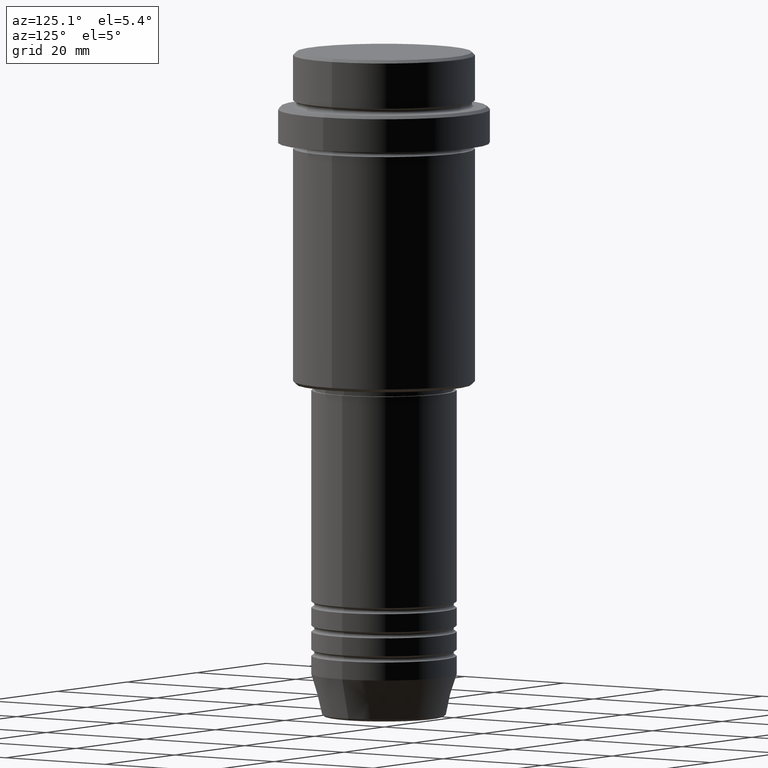
[diagram: clean part render]
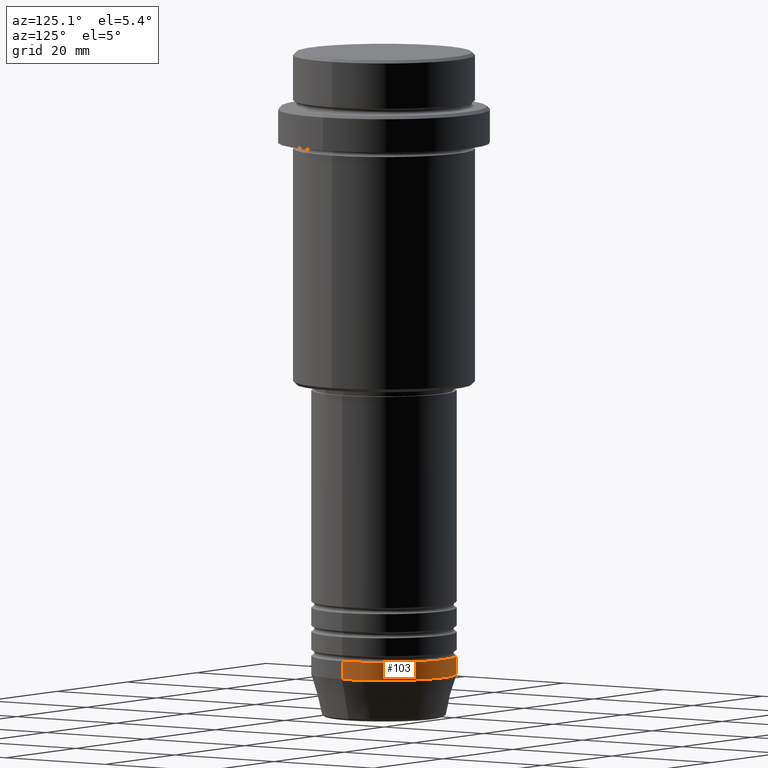
[diagram: same view with one face highlighted and labeled with its STEP entity id]
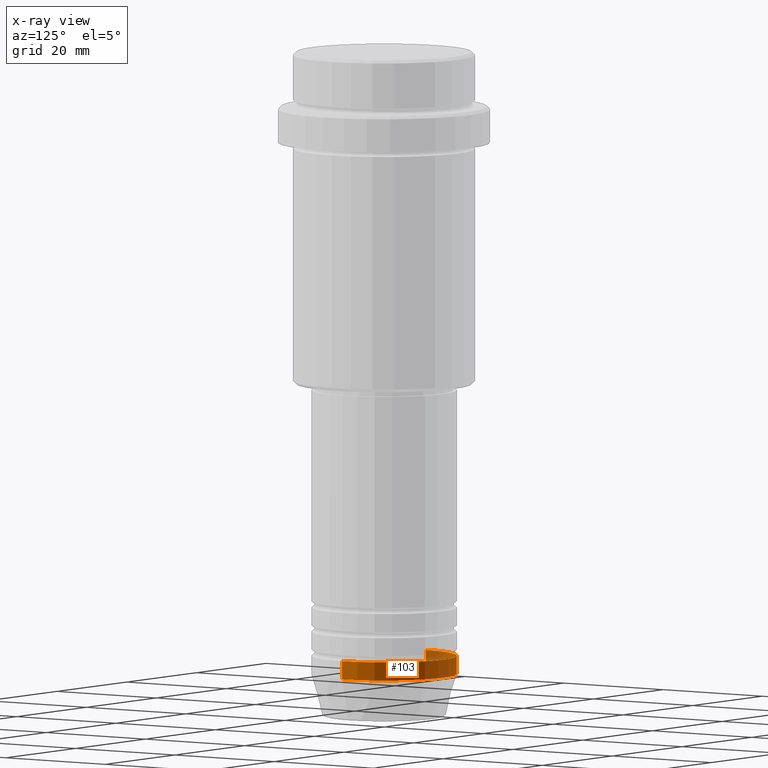
[diagram: x-ray of the same camera — body ghosted, the highlighted face saturated]
A machine part, auxiliary view. The second image highlights one B-rep face of the part: STEP entity #103.
The next image is the same camera in x-ray: the body ghosted, the highlighted face saturated — about 8% of this face is hidden behind the body in this view.
In plain terms, the highlighted cylindrical surface (partial cylindrical patch) has radius 12 mm, axis along (-0, -0, 1).
Its self-contained STEP definition (entity closure, byte-faithful):
#16 = AXIS2_PLACEMENT_3D ( 'NONE', #1383, #195, #646 ) ;
#50 = VERTEX_POINT ( 'NONE', #639 ) ;
#103 = ADVANCED_FACE ( 'NONE', ( #1068 ), #959, .T. ) ;
#166 = CIRCLE ( 'NONE', #217, 12.00000000000000000 ) ;
#195 = DIRECTION ( 'NONE',  ( -0.000000000000000000, -0.000000000000000000, 1.000000000000000000 ) ) ;
#217 = AXIS2_PLACEMENT_3D ( 'NONE', #401, #826, #848 ) ;
#219 = CIRCLE ( 'NONE', #565, 12.00000000000000000 ) ;
#327 = CARTESIAN_POINT ( 'NONE',  ( 12.00000000000000000, 0.000000000000000000, -103.0000000000000142 ) ) ;
#356 = EDGE_CURVE ( 'NONE', #1173, #883, #166, .T. ) ;
#380 = DIRECTION ( 'NONE',  ( -0.000000000000000000, -0.000000000000000000, 1.000000000000000000 ) ) ;
#388 = CARTESIAN_POINT ( 'NONE',  ( -12.00000000000000000, 1.469576158976823947E-15, -103.0000000000000142 ) ) ;
#401 = CARTESIAN_POINT ( 'NONE',  ( 0.000000000000000000, 0.000000000000000000, -103.0000000000000142 ) ) ;
#454 = ORIENTED_EDGE ( 'NONE', *, *, #914, .T. ) ;
#474 = VECTOR ( 'NONE', #924, 1000.000000000000000 ) ;
#541 = CARTESIAN_POINT ( 'NONE',  ( 0.000000000000000000, 0.000000000000000000, -100.0000000000000000 ) ) ;
#565 = AXIS2_PLACEMENT_3D ( 'NONE', #541, #861, #1162 ) ;
#566 = ORIENTED_EDGE ( 'NONE', *, *, #356, .T. ) ;
#639 = CARTESIAN_POINT ( 'NONE',  ( -12.00000000000000000, 1.469576158976823947E-15, -100.0000000000000000 ) ) ;
#644 = ORIENTED_EDGE ( 'NONE', *, *, #889, .F. ) ;
#646 = DIRECTION ( 'NONE',  ( 1.000000000000000000, 0.000000000000000000, 0.000000000000000000 ) ) ;
#651 = EDGE_CURVE ( 'NONE', #1094, #50, #219, .T. ) ;
#711 = CARTESIAN_POINT ( 'NONE',  ( 12.00000000000000000, 0.000000000000000000, 0.000000000000000000 ) ) ;
#777 = CARTESIAN_POINT ( 'NONE',  ( 12.00000000000000000, 0.000000000000000000, -100.0000000000000000 ) ) ;
#826 = DIRECTION ( 'NONE',  ( -0.000000000000000000, -0.000000000000000000, 1.000000000000000000 ) ) ;
#848 = DIRECTION ( 'NONE',  ( 1.000000000000000000, 0.000000000000000000, 0.000000000000000000 ) ) ;
#861 = DIRECTION ( 'NONE',  ( -0.000000000000000000, -0.000000000000000000, 1.000000000000000000 ) ) ;
#883 = VERTEX_POINT ( 'NONE', #388 ) ;
#889 = EDGE_CURVE ( 'NONE', #1173, #1094, #1262, .T. ) ;
#914 = EDGE_CURVE ( 'NONE', #883, #50, #916, .T. ) ;
#916 = LINE ( 'NONE', #1237, #474 ) ;
#924 = DIRECTION ( 'NONE',  ( -0.000000000000000000, -0.000000000000000000, 1.000000000000000000 ) ) ;
#959 = CYLINDRICAL_SURFACE ( 'NONE', #16, 12.00000000000000000 ) ;
#1068 = FACE_OUTER_BOUND ( 'NONE', #1159, .T. ) ;
#1094 = VERTEX_POINT ( 'NONE', #777 ) ;
#1152 = VECTOR ( 'NONE', #380, 1000.000000000000000 ) ;
#1159 = EDGE_LOOP ( 'NONE', ( #566, #454, #1272, #644 ) ) ;
#1162 = DIRECTION ( 'NONE',  ( 1.000000000000000000, 0.000000000000000000, 0.000000000000000000 ) ) ;
#1173 = VERTEX_POINT ( 'NONE', #327 ) ;
#1237 = CARTESIAN_POINT ( 'NONE',  ( -12.00000000000000000, 1.469576158976823947E-15, 0.000000000000000000 ) ) ;
#1262 = LINE ( 'NONE', #711, #1152 ) ;
#1272 = ORIENTED_EDGE ( 'NONE', *, *, #651, .F. ) ;
#1383 = CARTESIAN_POINT ( 'NONE',  ( 0.000000000000000000, 0.000000000000000000, 0.000000000000000000 ) ) ;